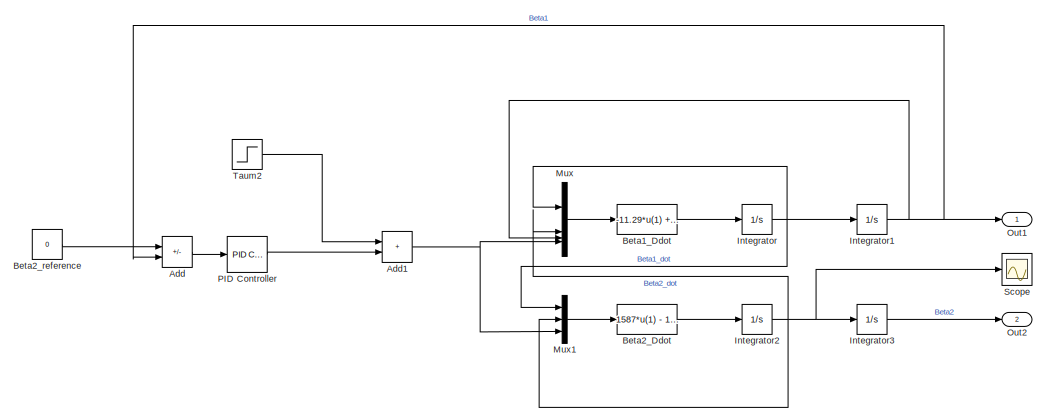
[diagram: root canvas - part 1/2, middle left region]
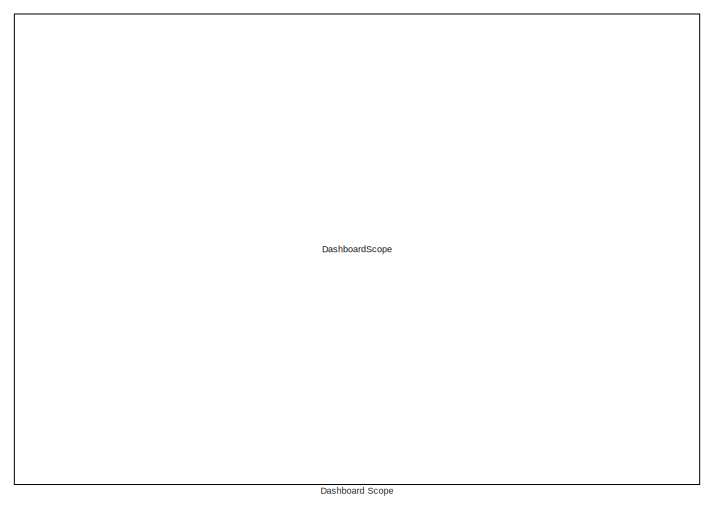
[diagram: root canvas - part 2/2, right side, full height]
MODEL slx_b00dd99354a0
KIND model
CONFIG AbsTol = auto
CONFIG EnableMultiTasking = off
CONFIG FixedStep = auto
CONFIG MaxStep = auto
CONFIG MinStep = auto
CONFIG RelTol = 1e-3
CONFIG SampleTimeConstraint = Unconstrained
CONFIG SolverName = VariableStepAuto
CONFIG StartTime = 0.0
CONFIG StopTime = 3.0
BLOCK [Sum] Add
  IconShape = rectangular
  Inputs = +-
BLOCK [Sum] Add1
  IconShape = rectangular
BLOCK [Fcn] Beta1_Ddot
  Expr = -11.29*u(1) + 5.643*u(2) - 94.78*u(3) - 5.643*u(4)
BLOCK [Fcn] Beta2_Ddot
  Expr = 1587*u(1) - 1587*u(2) + 1587*u(3)
BLOCK [Constant] Beta2_reference
  Value = 0
BLOCK [DashboardScope] Dashboard Scope
BLOCK [Integrator] Integrator
  ContinuousStateAttributes = "Beta1_dot"
BLOCK [Integrator] Integrator1
  ContinuousStateAttributes = "Beta1"
BLOCK [Integrator] Integrator2
  ContinuousStateAttributes = "Beta2_dot"
BLOCK [Integrator] Integrator3
  ContinuousStateAttributes = "Beta2"
BLOCK [Mux] Mux
  DisplayOption = bar
BLOCK [Mux] Mux1
  DisplayOption = bar
  Inputs = 3
BLOCK [Outport] Out1
  SignalName = Beta1
BLOCK [Outport] Out2
  Port = 2
  SignalName = Beta2
BLOCK [Reference] PID Controller  REF=slpidlib/PID Controller
  LibrarySourceBlock = simulink/Continuous/PID Controller
  SourceBlock = slpidlib/PID Controller
  SourceType = PID 1dof
BLOCK [Scope] Scope
  Floating = off
  NumInputPorts = 1
  ScopeSpecificationString = Simulink.scopes.TimeScopeBlockCfg('CurrentConfiguration', extmgr.ConfigurationSet(extmgr.Configuration('Core','General UI',true),extmgr.Configuration('Core','Source UI',true),extmgr.Configuration('Sources','WiredSimulink',true,'SampleTime','0.3'),extmgr.Configuration('Visuals','Time Domain',true,'SerializedDisplays',{struct('MinYLimReal','-0.00030','MaxYLimReal','0.00010','YLabelReal','','MinYLimM...<+1523ch>
BLOCK [Step] Taum2
  SampleTime = 0
NET Add1:1 -> Mux1:3, Mux:4
LINE Add:1 -> PID Controller:1
LINE Beta1_Ddot:1 -> Integrator:1
LINE Beta2_Ddot:1 -> Integrator2:1
LINE Beta2_reference:1 -> Add:1
NET Integrator1:1 -> Add:2, Mux:3, Out1:1
NET Integrator2:1 -> Integrator3:1, Mux1:2, Mux:2, Scope:1
LINE Integrator3:1 -> Out2:1
NET Integrator:1 -> Integrator1:1, Mux1:1, Mux:1
LINE Mux1:1 -> Beta2_Ddot:1
LINE Mux:1 -> Beta1_Ddot:1
LINE PID Controller:1 -> Add1:2
LINE Taum2:1 -> Add1:1
note: NET lines group one-source signal fan-out (src -> all destinations, sorted); 1:1 wires keep LINE
